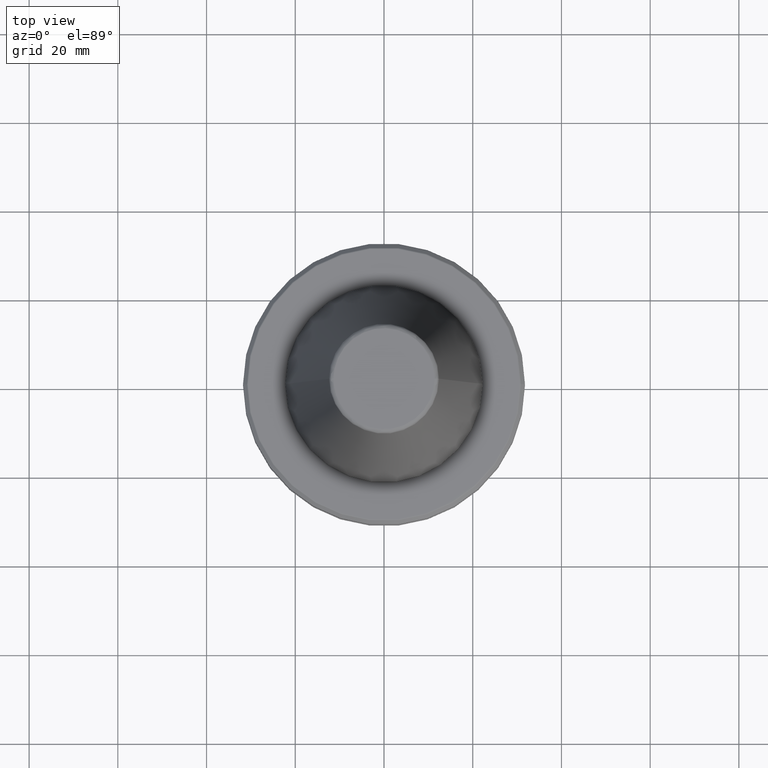
[diagram: clean part render]
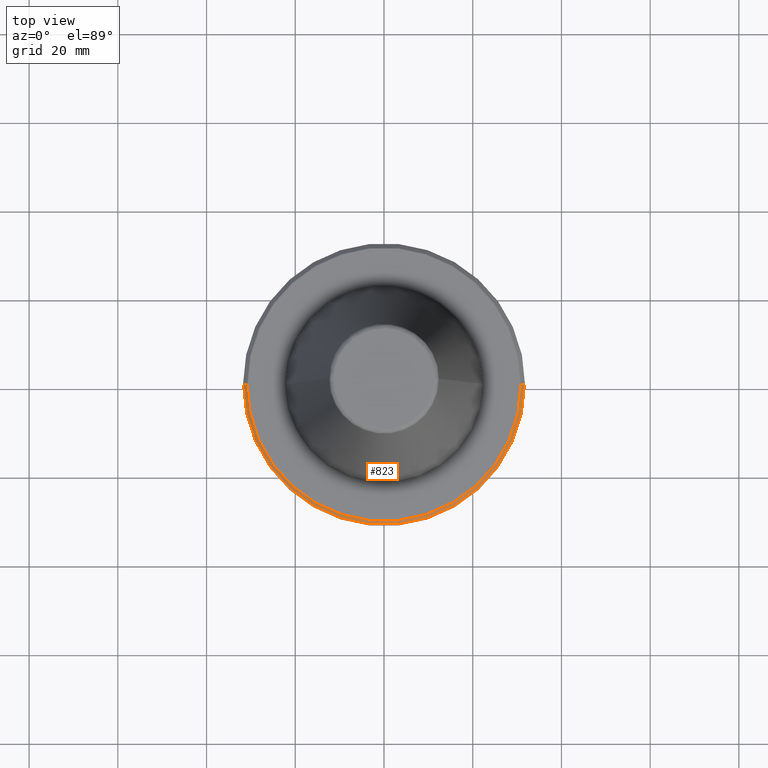
[diagram: same view with one face highlighted and labeled with its STEP entity id]
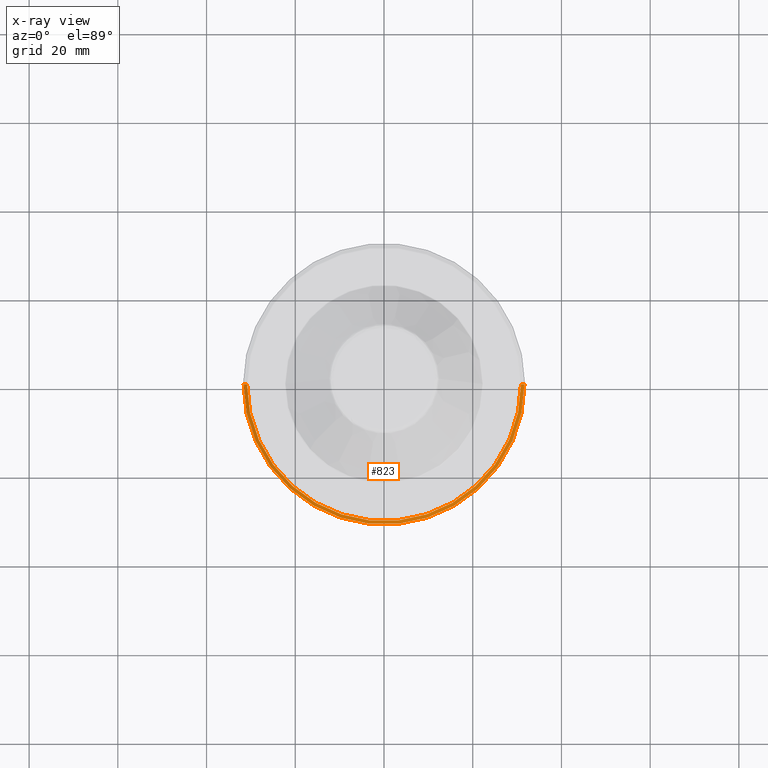
[diagram: x-ray of the same camera — body ghosted, the highlighted face saturated]
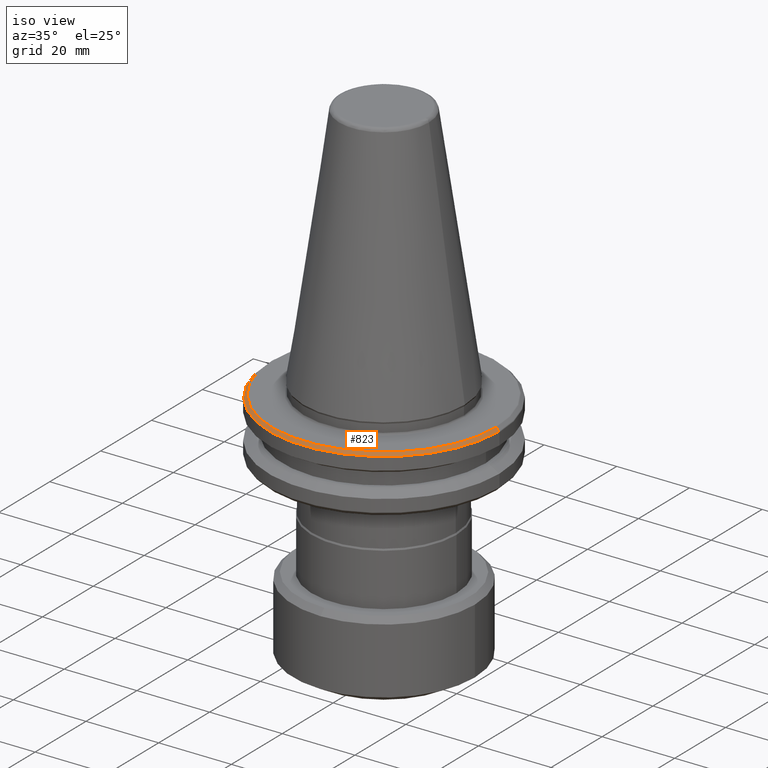
[diagram: same view with one face highlighted and labeled with its STEP entity id]
A machine part, top view. The second image highlights one B-rep face of the part: STEP entity #823.
The next image is the same camera in x-ray: the body ghosted, the highlighted face saturated — about 0% of this face is hidden behind the body in this view.
A second angle (iso view) of the same face is appended — the face is thin or edge-on in the first view.
In plain terms, the highlighted conical surface has half-angle 45 deg.
Its self-contained STEP definition (entity closure, byte-faithful):
#126 = CARTESIAN_POINT ( 'NONE',  ( 31.64991377447984900, 3.875996559720647500E-015, -4.075771643343856000 ) ) ;
#145 = EDGE_CURVE ( 'NONE', #1325, #207, #305, .T. ) ;
#157 = VERTEX_POINT ( 'NONE', #1477 ) ;
#170 = ORIENTED_EDGE ( 'NONE', *, *, #813, .T. ) ;
#199 = DIRECTION ( 'NONE',  ( -1.000000000000000000, 0.0000000000000000000, 0.0000000000000000000 ) ) ;
#204 = CARTESIAN_POINT ( 'NONE',  ( 0.0000000000000000000, 0.0000000000000000000, -3.310086218479078900 ) ) ;
#207 = VERTEX_POINT ( 'NONE', #126 ) ;
#234 = DIRECTION ( 'NONE',  ( 1.000000000000000000, 0.0000000000000000000, 0.0000000000000000000 ) ) ;
#239 = DIRECTION ( 'NONE',  ( -0.0000000000000000000, -0.0000000000000000000, 1.000000000000000000 ) ) ;
#244 = CARTESIAN_POINT ( 'NONE',  ( 0.0000000000000000000, 0.0000000000000000000, -4.075771643343856000 ) ) ;
#267 = CIRCLE ( 'NONE', #448, 30.88422834961507500 ) ;
#271 = DIRECTION ( 'NONE',  ( 0.0000000000000000000, 0.0000000000000000000, -1.000000000000000000 ) ) ;
#288 = VECTOR ( 'NONE', #581, 1000.000000000000000 ) ;
#289 = VERTEX_POINT ( 'NONE', #1505 ) ;
#305 = LINE ( 'NONE', #631, #288 ) ;
#448 = AXIS2_PLACEMENT_3D ( 'NONE', #811, #807, #804 ) ;
#581 = DIRECTION ( 'NONE',  ( 0.7071067811865459100, 8.659560562354913100E-017, -0.7071067811865491300 ) ) ;
#603 = EDGE_CURVE ( 'NONE', #289, #157, #1358, .T. ) ;
#631 = CARTESIAN_POINT ( 'NONE',  ( 30.88422834961507500, 3.782227139249204400E-015, -3.310086218479078900 ) ) ;
#688 = AXIS2_PLACEMENT_3D ( 'NONE', #244, #239, #234 ) ;
#734 = CONICAL_SURFACE ( 'NONE', #781, 30.88422834961507500, 0.7853981633974460600 ) ;
#769 = CARTESIAN_POINT ( 'NONE',  ( -30.88422834961507500, 0.0000000000000000000, -3.310086218479078900 ) ) ;
#781 = AXIS2_PLACEMENT_3D ( 'NONE', #204, #271, #199 ) ;
#794 = DIRECTION ( 'NONE',  ( -0.7071067811865459100, 0.0000000000000000000, -0.7071067811865491300 ) ) ;
#804 = DIRECTION ( 'NONE',  ( 1.000000000000000000, 0.0000000000000000000, 0.0000000000000000000 ) ) ;
#807 = DIRECTION ( 'NONE',  ( -0.0000000000000000000, -0.0000000000000000000, 1.000000000000000000 ) ) ;
#811 = CARTESIAN_POINT ( 'NONE',  ( 0.0000000000000000000, 0.0000000000000000000, -3.310086218479078900 ) ) ;
#813 = EDGE_CURVE ( 'NONE', #157, #207, #1019, .T. ) ;
#819 = FACE_OUTER_BOUND ( 'NONE', #932, .T. ) ;
#823 = ADVANCED_FACE ( 'NONE', ( #819 ), #734, .T. ) ;
#828 = ORIENTED_EDGE ( 'NONE', *, *, #1411, .F. ) ;
#932 = EDGE_LOOP ( 'NONE', ( #1519, #828, #1168, #170 ) ) ;
#941 = CARTESIAN_POINT ( 'NONE',  ( 30.88422834961507100, 0.0000000000000000000, -3.310086218479078900 ) ) ;
#1019 = CIRCLE ( 'NONE', #688, 31.64991377447984900 ) ;
#1168 = ORIENTED_EDGE ( 'NONE', *, *, #603, .T. ) ;
#1325 = VERTEX_POINT ( 'NONE', #941 ) ;
#1332 = VECTOR ( 'NONE', #794, 1000.000000000000000 ) ;
#1358 = LINE ( 'NONE', #769, #1332 ) ;
#1411 = EDGE_CURVE ( 'NONE', #289, #1325, #267, .T. ) ;
#1477 = CARTESIAN_POINT ( 'NONE',  ( -31.64991377447984900, 0.0000000000000000000, -4.075771643343856000 ) ) ;
#1505 = CARTESIAN_POINT ( 'NONE',  ( -30.88422834961507100, 3.782227139249204400E-015, -3.310086218479078900 ) ) ;
#1519 = ORIENTED_EDGE ( 'NONE', *, *, #145, .F. ) ;